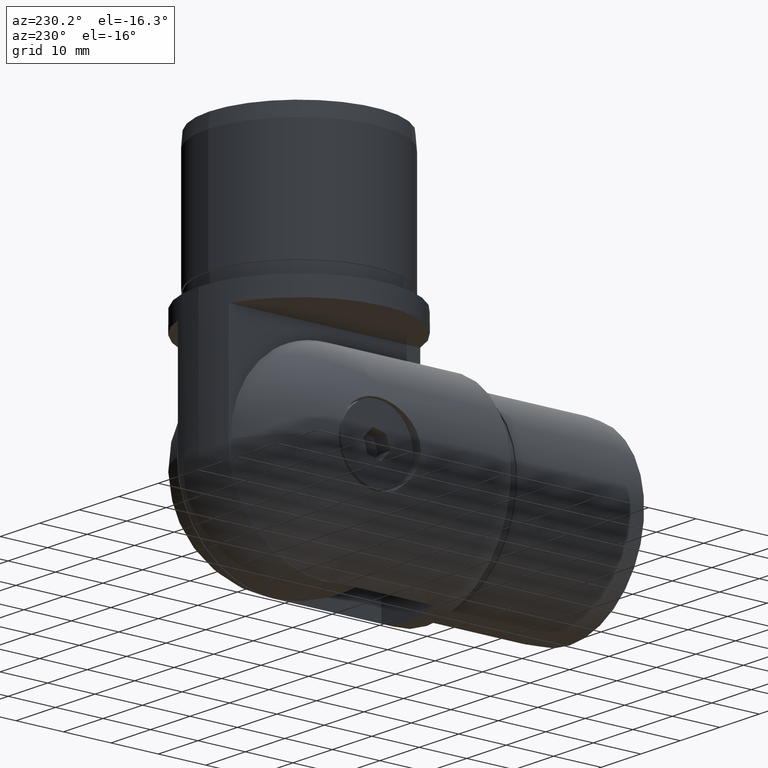
[diagram: clean part render]
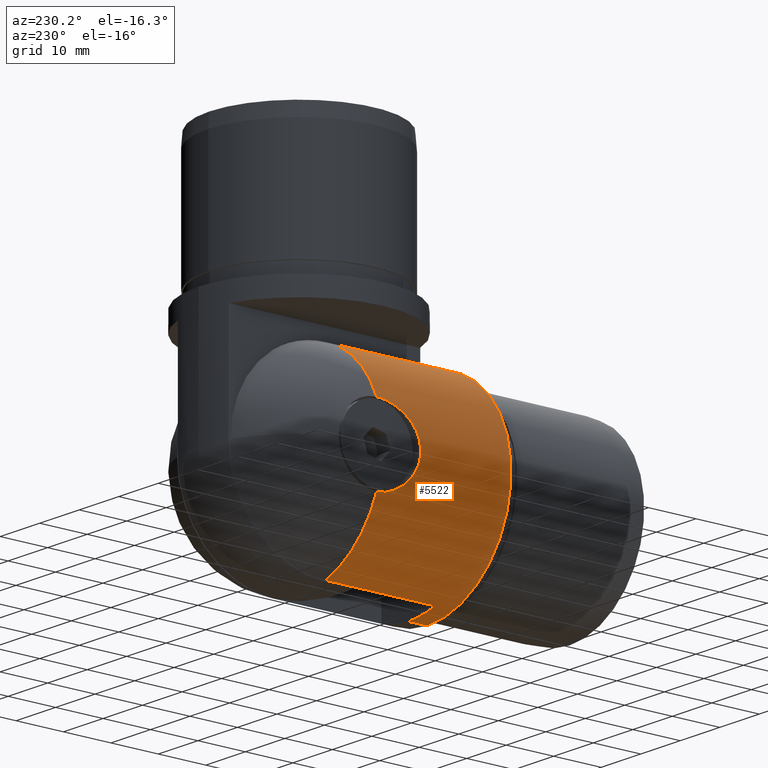
[diagram: same view with one face highlighted and labeled with its STEP entity id]
A machine part, auxiliary view. The second image highlights one B-rep face of the part: STEP entity #5522.
In plain terms, the highlighted cylindrical surface (partial cylindrical patch) has radius 21.2 mm, axis along (0, -1, 0).
Its self-contained STEP definition (entity closure, byte-faithful):
#56 = AXIS2_PLACEMENT_3D ( 'NONE', #4323, #1500, #5263 ) ;
#112 = CARTESIAN_POINT ( 'NONE',  ( -20.42943801203350418, 51.35004870449107983, -5.663752222727372221 ) ) ;
#133 = CARTESIAN_POINT ( 'NONE',  ( -20.27832713775442741, 51.92352948092918297, -6.182997036270589497 ) ) ;
#142 = CIRCLE ( 'NONE', #56, 21.19999999999999929 ) ;
#151 = CARTESIAN_POINT ( 'NONE',  ( -19.94426107809078630, 53.48161638186537914, -7.189487578162192527 ) ) ;
#158 = ORIENTED_EDGE ( 'NONE', *, *, #4256, .F. ) ;
#165 = CARTESIAN_POINT ( 'NONE',  ( -21.18043258207395141, 49.05186659441148578, 0.9190561370631638027 ) ) ;
#166 = CARTESIAN_POINT ( 'NONE',  ( -20.42699664024340578, 51.35888471539018951, -5.672552972675858562 ) ) ;
#167 = EDGE_CURVE ( 'NONE', #548, #4448, #2266, .T. ) ;
#175 = CARTESIAN_POINT ( 'NONE',  ( -19.75518921590801469, 54.80005714119689486, 7.692680850224066447 ) ) ;
#194 = CARTESIAN_POINT ( 'NONE',  ( -21.04327928036391171, 49.42480703260135044, 2.575724181210024444 ) ) ;
#195 = CARTESIAN_POINT ( 'NONE',  ( -20.27921649087816292, 51.91997794438821501, -6.180079384281714994 ) ) ;
#203 = CARTESIAN_POINT ( 'NONE',  ( -19.87708576752319090, 53.89217964041871767, 7.371669122750149405 ) ) ;
#223 = CARTESIAN_POINT ( 'NONE',  ( -21.11656859962976185, 49.22370136450860656, -1.879718540524055070 ) ) ;
#230 = CARTESIAN_POINT ( 'NONE',  ( -19.87499013766385048, 53.90560682917376312, 7.377315497325561466 ) ) ;
#241 = CARTESIAN_POINT ( 'NONE',  ( -20.72612665149017275, 50.35678298638896422, -4.457317195198680970 ) ) ;
#253 = EDGE_CURVE ( 'NONE', #5754, #4254, #1907, .T. ) ;
#256 = CARTESIAN_POINT ( 'NONE',  ( -20.97433270352526691, 49.61876416540633983, -3.085033347272747140 ) ) ;
#284 = CARTESIAN_POINT ( 'NONE',  ( -21.04497029130640229, 49.41986123617613913, -2.571152336572488650 ) ) ;
#304 = CARTESIAN_POINT ( 'NONE',  ( -21.00647034227681331, 49.52782800241204342, 2.859133408922674313 ) ) ;
#306 = DIRECTION ( 'NONE',  ( 0.0000000000000000000, 0.0000000000000000000, 1.000000000000000000 ) ) ;
#341 = CARTESIAN_POINT ( 'NONE',  ( -20.78747259182316753, 50.16756134562035641, 4.162020959967368761 ) ) ;
#352 = CARTESIAN_POINT ( 'NONE',  ( -6.750000000000000000, 34.00000000000000000, -20.09670370981269727 ) ) ;
#381 = CARTESIAN_POINT ( 'NONE',  ( -20.27964611961635910, 51.91823537254999366, 6.178646221066961708 ) ) ;
#438 = CIRCLE ( 'NONE', #3122, 21.19999999999999929 ) ;
#535 = EDGE_CURVE ( 'NONE', #813, #2013, #611, .T. ) ;
#548 = VERTEX_POINT ( 'NONE', #991 ) ;
#609 = CARTESIAN_POINT ( 'NONE',  ( -20.49650989227231790, 51.10787289255098642, -5.421416274017472503 ) ) ;
#611 = CIRCLE ( 'NONE', #5752, 21.19999999999999929 ) ;
#624 = CARTESIAN_POINT ( 'NONE',  ( -20.10879365779183559, 52.64975065989855096, -6.713982561713224051 ) ) ;
#640 = ORIENTED_EDGE ( 'NONE', *, *, #4936, .F. ) ;
#645 = CARTESIAN_POINT ( 'NONE',  ( -19.85595097466217851, 54.03010180171355614, -7.428443391244021754 ) ) ;
#666 = CARTESIAN_POINT ( 'NONE',  ( -19.80011137199416282, 54.42754681237364878, -7.576324534039440728 ) ) ;
#675 = CARTESIAN_POINT ( 'NONE',  ( -19.87413587837362883, 53.91109445923938637, 7.379616254529441477 ) ) ;
#685 = CARTESIAN_POINT ( 'NONE',  ( -21.17126035492110248, 49.07634650985561109, 1.116567021937764359 ) ) ;
#686 = CARTESIAN_POINT ( 'NONE',  ( -20.36176778773316443, 51.59982031309284878, -5.902958684759558317 ) ) ;
#689 = CARTESIAN_POINT ( 'NONE',  ( -19.83365578926647643, 54.17219457639608038, 7.488576929932234449 ) ) ;
#696 = CARTESIAN_POINT ( 'NONE',  ( -21.19999999999999929, 49.00000000000000000, 9.797174387786939677E-16 ) ) ;
#698 = CARTESIAN_POINT ( 'NONE',  ( -21.13233395636593315, 49.18106070617613312, -1.692689408480103408 ) ) ;
#723 = CARTESIAN_POINT ( 'NONE',  ( -21.19999999999999218, 49.00000000000000711, -0.5200570657044928380 ) ) ;
#724 = DIRECTION ( 'NONE',  ( 0.0000000000000000000, 1.000000000000000000, 0.0000000000000000000 ) ) ;
#744 = CARTESIAN_POINT ( 'NONE',  ( -20.93297341017221669, 49.73694750289111965, -3.354391944591644581 ) ) ;
#784 = ORIENTED_EDGE ( 'NONE', *, *, #253, .T. ) ;
#813 = VERTEX_POINT ( 'NONE', #3904 ) ;
#851 = CARTESIAN_POINT ( 'NONE',  ( -20.22485777910799953, 52.14051991147108822, 6.356270507105501899 ) ) ;
#882 = CARTESIAN_POINT ( 'NONE',  ( -20.43871630017529739, 51.31657931459329802, 5.630171834145868637 ) ) ;
#885 = CARTESIAN_POINT ( 'NONE',  ( 0.0000000000000000000, 57.00000000000000000, 0.0000000000000000000 ) ) ;
#910 = DIRECTION ( 'NONE',  ( 0.0000000000000000000, -1.000000000000000000, 0.0000000000000000000 ) ) ;
#991 = CARTESIAN_POINT ( 'NONE',  ( 0.0000000000000000000, 34.00000000000000000, -21.19999999999999929 ) ) ;
#1008 = ORIENTED_EDGE ( 'NONE', *, *, #4958, .F. ) ;
#1079 = CARTESIAN_POINT ( 'NONE',  ( -20.55342183840868131, 50.91386623208524043, -5.198697035192510363 ) ) ;
#1096 = CARTESIAN_POINT ( 'NONE',  ( -19.73971506616582872, 54.93220713572266334, -7.732630606387083994 ) ) ;
#1097 = VECTOR ( 'NONE', #910, 1000.000000000000000 ) ;
#1118 = CARTESIAN_POINT ( 'NONE',  ( -20.08637445242769459, 52.75418410298583893, -6.780985536865790309 ) ) ;
#1125 = EDGE_CURVE ( 'NONE', #3259, #548, #438, .T. ) ;
#1132 = CARTESIAN_POINT ( 'NONE',  ( -19.86439892970199850, 53.97432388796019609, -7.405795268101684314 ) ) ;
#1146 = VERTEX_POINT ( 'NONE', #2316 ) ;
#1154 = CARTESIAN_POINT ( 'NONE',  ( -19.70138225963497902, 55.35542847507816333, 7.829152401942856443 ) ) ;
#1190 = CARTESIAN_POINT ( 'NONE',  ( -20.68106312350715825, 50.49826420351047318, -4.661607578919294781 ) ) ;
#1194 = CARTESIAN_POINT ( 'NONE',  ( -19.63262590689284792, 56.47663036424618355, 8.000000000000000000 ) ) ;
#1203 = CARTESIAN_POINT ( 'NONE',  ( -20.72639478928017454, 50.35594652395027992, -4.456071479509298605 ) ) ;
#1210 = CARTESIAN_POINT ( 'NONE',  ( -19.69885713004149608, 55.38594148214232149, 7.835499852234216078 ) ) ;
#1222 = LINE ( 'NONE', #4324, #5053 ) ;
#1245 = ORIENTED_EDGE ( 'NONE', *, *, #535, .F. ) ;
#1269 = CARTESIAN_POINT ( 'NONE',  ( 0.0000000000000000000, 57.00000000000000000, -21.19999999999999929 ) ) ;
#1274 = AXIS2_PLACEMENT_3D ( 'NONE', #5888, #724, #306 ) ;
#1303 = CARTESIAN_POINT ( 'NONE',  ( -20.13408931140155289, 52.53439747862623932, 6.637655922589065227 ) ) ;
#1336 = CARTESIAN_POINT ( 'NONE',  ( -20.65109670976829648, 50.59184907324006275, 4.796170923298686439 ) ) ;
#1351 = CARTESIAN_POINT ( 'NONE',  ( -20.28458933438281875, 51.89855346674017511, 6.162415356151975665 ) ) ;
#1353 = DIRECTION ( 'NONE',  ( 0.0000000000000000000, -1.000000000000000000, 0.0000000000000000000 ) ) ;
#1500 = DIRECTION ( 'NONE',  ( 0.0000000000000000000, -1.000000000000000000, 0.0000000000000000000 ) ) ;
#1562 = CARTESIAN_POINT ( 'NONE',  ( -19.67833483343341783, 55.65694321143271139, -7.886950637508348017 ) ) ;
#1576 = CARTESIAN_POINT ( 'NONE',  ( -19.86806334160216281, 53.95041327708981527, -7.395951272204843718 ) ) ;
#1589 = CARTESIAN_POINT ( 'NONE',  ( -20.42335539373019060, 51.37207918639393256, -5.685663920050162190 ) ) ;
#1609 = CARTESIAN_POINT ( 'NONE',  ( -21.15069927905351221, 49.13156322358520356, 1.445274619941857130 ) ) ;
#1610 = CARTESIAN_POINT ( 'NONE',  ( -20.12844413436164359, 52.55992026374394044, -6.654755666740881814 ) ) ;
#1631 = CARTESIAN_POINT ( 'NONE',  ( -19.83946442215804140, 54.14159271780674487, -7.472461641991936965 ) ) ;
#1650 = CARTESIAN_POINT ( 'NONE',  ( -19.88024391351441622, 53.87201149311339776, 7.363155686374825315 ) ) ;
#1661 = CARTESIAN_POINT ( 'NONE',  ( -20.71968228324849548, 50.37689644000742106, -4.487176768869884924 ) ) ;
#1681 = CARTESIAN_POINT ( 'NONE',  ( -21.01256594240234676, 49.51016532115225033, -2.824417276211084182 ) ) ;
#1712 = CARTESIAN_POINT ( 'NONE',  ( 0.0000000000000000000, 57.00000000000000000, 0.0000000000000000000 ) ) ;
#1728 = DIRECTION ( 'NONE',  ( 0.0000000000000000000, -1.000000000000000000, 0.0000000000000000000 ) ) ;
#1738 = CARTESIAN_POINT ( 'NONE',  ( -20.97714858698950735, 49.61076508964967502, 3.065848692832879863 ) ) ;
#1755 = CARTESIAN_POINT ( 'NONE',  ( -20.03086506923057897, 53.01993694768722065, 6.944581507236883944 ) ) ;
#1762 = CARTESIAN_POINT ( 'NONE',  ( -20.94292160588946672, 49.70799852556114473, 3.298974238172797335 ) ) ;
#1797 = CARTESIAN_POINT ( 'NONE',  ( -20.27973301999457334, 51.91788829322954513, 6.178361090010257684 ) ) ;
#1853 = CARTESIAN_POINT ( 'NONE',  ( -20.35920519176447030, 51.60903997513320718, 5.912210969873107125 ) ) ;
#1907 = CIRCLE ( 'NONE', #2072, 21.19999999999999929 ) ;
#1946 = CARTESIAN_POINT ( 'NONE',  ( -20.28184572330068747, 51.90946725902079351, 6.171426318112202658 ) ) ;
#2012 = CARTESIAN_POINT ( 'NONE',  ( -19.87051602947787288, 53.93447171351239433, -7.389357937339546822 ) ) ;
#2013 = VERTEX_POINT ( 'NONE', #5673 ) ;
#2031 = CARTESIAN_POINT ( 'NONE',  ( -20.41500483006948841, 51.40244557517297608, -5.715628304547704985 ) ) ;
#2049 = CARTESIAN_POINT ( 'NONE',  ( -20.23185954214974558, 52.11200300459071144, -6.333719538382802661 ) ) ;
#2065 = CARTESIAN_POINT ( 'NONE',  ( -20.03176804758042096, 53.02001675608626385, -6.941079899010088816 ) ) ;
#2072 = AXIS2_PLACEMENT_3D ( 'NONE', #4686, #3247, #5158 ) ;
#2083 = CARTESIAN_POINT ( 'NONE',  ( -21.19510814551848199, 49.01281523590319011, 0.5242468966072940662 ) ) ;
#2084 = CARTESIAN_POINT ( 'NONE',  ( -19.78407662107873932, 54.55418154744508286, -7.618090833879539225 ) ) ;
#2105 = CARTESIAN_POINT ( 'NONE',  ( -21.13947451883896278, 49.16179722532028507, -1.601151041588585677 ) ) ;
#2115 = CARTESIAN_POINT ( 'NONE',  ( -19.70522757211892184, 55.30961270493701676, 7.819482085479527278 ) ) ;
#2132 = CARTESIAN_POINT ( 'NONE',  ( -20.72346013478272653, 50.36510228448643289, -4.469697416778837251 ) ) ;
#2148 = CARTESIAN_POINT ( 'NONE',  ( -21.19999999999999929, 49.00000000000000000, 9.797174387786939677E-16 ) ) ;
#2156 = CARTESIAN_POINT ( 'NONE',  ( -19.63262590689285148, 57.00000000000000000, 8.000000000000000000 ) ) ;
#2214 = CARTESIAN_POINT ( 'NONE',  ( -20.72957945531945612, 50.34601785381276784, 4.441231949265439738 ) ) ;
#2233 = CARTESIAN_POINT ( 'NONE',  ( -20.76976219639769283, 50.22162684108962338, 4.249958077970936721 ) ) ;
#2266 = LINE ( 'NONE', #1269, #1097 ) ;
#2316 = CARTESIAN_POINT ( 'NONE',  ( -6.750000000000000000, 57.00000000000000000, -20.09670370981269727 ) ) ;
#2450 = CARTESIAN_POINT ( 'NONE',  ( -20.31050144056629136, 51.79658006874663556, 6.076727043437453624 ) ) ;
#2491 = CARTESIAN_POINT ( 'NONE',  ( -19.87194764770444522, 53.92520791490958487, -7.385506483704806335 ) ) ;
#2531 = CARTESIAN_POINT ( 'NONE',  ( -19.71513096000168375, 55.18169765304148200, -7.794638759952965401 ) ) ;
#2549 = CARTESIAN_POINT ( 'NONE',  ( -6.750000000000000000, 57.00000000000000000, -20.09670370981269727 ) ) ;
#2556 = CARTESIAN_POINT ( 'NONE',  ( -21.14611316547708952, 49.14390802084160725, 1.510938399302927060 ) ) ;
#2557 = CARTESIAN_POINT ( 'NONE',  ( -19.68546149402307321, 55.55838979689511348, -7.869109009203595129 ) ) ;
#2566 = CARTESIAN_POINT ( 'NONE',  ( -19.79931911352426965, 54.42482940284958204, 7.578710007460587761 ) ) ;
#2581 = CARTESIAN_POINT ( 'NONE',  ( -20.15268985786221734, 52.45033844883252527, -6.581302854473957353 ) ) ;
#2586 = ORIENTED_EDGE ( 'NONE', *, *, #4242, .T. ) ;
#2596 = CARTESIAN_POINT ( 'NONE',  ( -21.13722420754543307, 49.16786475480270724, -1.630541816397895305 ) ) ;
#2611 = CARTESIAN_POINT ( 'NONE',  ( -20.94633334496279176, 49.69857397027480772, -3.270417589516533940 ) ) ;
#2630 = CARTESIAN_POINT ( 'NONE',  ( -21.08657135419736406, 49.30536643526733087, -2.193158979340385173 ) ) ;
#2660 = EDGE_LOOP ( 'NONE', ( #6073, #784, #2586, #1245, #1008, #158, #2941, #5655, #4536, #3625, #640 ) ) ;
#2672 = CARTESIAN_POINT ( 'NONE',  ( -20.82202718506658456, 50.06277968233003861, 3.986667783046635716 ) ) ;
#2693 = CARTESIAN_POINT ( 'NONE',  ( -20.72799982577893374, 50.35094110632759623, 4.448599269144191126 ) ) ;
#2743 = CARTESIAN_POINT ( 'NONE',  ( -20.72694465803837360, 50.35423161643795709, 4.453512246706310407 ) ) ;
#2784 = CARTESIAN_POINT ( 'NONE',  ( -20.44472366557906895, 51.29497344010623294, 5.608333299963194740 ) ) ;
#2828 = CARTESIAN_POINT ( 'NONE',  ( -20.39143016970308508, 51.48738075612546794, 5.800962420418652066 ) ) ;
#2836 = CARTESIAN_POINT ( 'NONE',  ( 2.596251214192389953E-15, 34.00000000000000000, 21.19999999999999929 ) ) ;
#2941 = ORIENTED_EDGE ( 'NONE', *, *, #3582, .F. ) ;
#2982 = CARTESIAN_POINT ( 'NONE',  ( -20.26773409381593183, 51.96598424320208665, -6.217657390761707425 ) ) ;
#2988 = CARTESIAN_POINT ( 'NONE',  ( -20.29683017689835722, 51.85017233095955902, 6.122076658662293447 ) ) ;
#2994 = CARTESIAN_POINT ( 'NONE',  ( -19.65359631046702305, 56.08422839082432887, -7.948507424336309413 ) ) ;
#3013 = CARTESIAN_POINT ( 'NONE',  ( -21.19999999999999929, 49.00000000000000000, 9.797174387786939677E-16 ) ) ;
#3014 = CARTESIAN_POINT ( 'NONE',  ( -20.00895500355421674, 53.13667986929812770, -7.006546674214078507 ) ) ;
#3024 = CARTESIAN_POINT ( 'NONE',  ( -20.29065063692603132, 51.87452082480851345, 6.142480337551325498 ) ) ;
#3035 = CARTESIAN_POINT ( 'NONE',  ( -21.12288147911754166, 49.20652681284978058, 1.823521904618098155 ) ) ;
#3037 = CARTESIAN_POINT ( 'NONE',  ( -20.27699449742928905, 51.92885393630560031, -6.187367328573748715 ) ) ;
#3056 = CARTESIAN_POINT ( 'NONE',  ( -20.62724313090261319, 50.67054541534397316, -4.894371607974268734 ) ) ;
#3084 = DIRECTION ( 'NONE',  ( 0.0000000000000000000, 0.0000000000000000000, -1.000000000000000000 ) ) ;
#3096 = CARTESIAN_POINT ( 'NONE',  ( -20.97144732047233973, 49.62696542474466810, -3.104579940206703359 ) ) ;
#3102 = VERTEX_POINT ( 'NONE', #696 ) ;
#3116 = CARTESIAN_POINT ( 'NONE',  ( -20.72506230000772476, 50.36010331111086913, -4.462261851283964909 ) ) ;
#3122 = AXIS2_PLACEMENT_3D ( 'NONE', #3727, #1353, #4694 ) ;
#3171 = CARTESIAN_POINT ( 'NONE',  ( -20.18814042251626972, 52.29649729714488871, 6.471571887633757569 ) ) ;
#3172 = LINE ( 'NONE', #4161, #4724 ) ;
#3210 = CARTESIAN_POINT ( 'NONE',  ( -20.17046664644305665, 52.37276370063811015, 6.526488690454561592 ) ) ;
#3247 = DIRECTION ( 'NONE',  ( 0.0000000000000000000, -1.000000000000000000, 0.0000000000000000000 ) ) ;
#3259 = VERTEX_POINT ( 'NONE', #352 ) ;
#3370 = DIRECTION ( 'NONE',  ( 0.0000000000000000000, -1.000000000000000000, 0.0000000000000000000 ) ) ;
#3376 = LINE ( 'NONE', #2549, #3897 ) ;
#3439 = CARTESIAN_POINT ( 'NONE',  ( -20.43089066847560176, 51.34479834188826430, -5.658508707864281284 ) ) ;
#3477 = CARTESIAN_POINT ( 'NONE',  ( -20.17551761675311539, 52.35014520600292087, -6.511214108109425247 ) ) ;
#3497 = CARTESIAN_POINT ( 'NONE',  ( -19.69037643236077528, 55.49270425760339975, -7.856791719358378501 ) ) ;
#3508 = DIRECTION ( 'NONE',  ( 0.0000000000000000000, -1.000000000000000000, 0.0000000000000000000 ) ) ;
#3514 = CARTESIAN_POINT ( 'NONE',  ( -20.30939424718410535, 51.80025343018684936, -6.081070548171217283 ) ) ;
#3523 = CARTESIAN_POINT ( 'NONE',  ( -19.74170843603544867, 54.92451785507056172, 7.727135789446757386 ) ) ;
#3541 = CARTESIAN_POINT ( 'NONE',  ( -21.18063184602845794, 49.05087971849160766, -1.046412855543243481 ) ) ;
#3554 = VERTEX_POINT ( 'NONE', #4520 ) ;
#3562 = CARTESIAN_POINT ( 'NONE',  ( -21.19999999999999929, 49.00000000000000000, 0.2613295650336766029 ) ) ;
#3563 = CARTESIAN_POINT ( 'NONE',  ( -20.97347605095101386, 49.62119850311746205, -3.090848414699182811 ) ) ;
#3582 = EDGE_CURVE ( 'NONE', #1146, #3554, #4918, .T. ) ;
#3622 = CARTESIAN_POINT ( 'NONE',  ( -20.98428744386892220, 49.59051785195298834, 3.016598033867031958 ) ) ;
#3625 = ORIENTED_EDGE ( 'NONE', *, *, #167, .T. ) ;
#3639 = VERTEX_POINT ( 'NONE', #5850 ) ;
#3643 = CARTESIAN_POINT ( 'NONE',  ( -20.73194551604583680, 50.33864685317130494, 4.430181864933443237 ) ) ;
#3702 = CARTESIAN_POINT ( 'NONE',  ( -20.57715587181289152, 50.83565874189648071, 5.100765659197678659 ) ) ;
#3727 = CARTESIAN_POINT ( 'NONE',  ( 0.0000000000000000000, 34.00000000000000000, 0.0000000000000000000 ) ) ;
#3729 = CARTESIAN_POINT ( 'NONE',  ( -20.50778261316511220, 51.07228265212023643, 5.372860186098858293 ) ) ;
#3812 = EDGE_CURVE ( 'NONE', #1146, #3259, #3376, .T. ) ;
#3897 = VECTOR ( 'NONE', #3508, 1000.000000000000000 ) ;
#3904 = CARTESIAN_POINT ( 'NONE',  ( -19.63262590689285148, 57.00000000000000000, 8.000000000000000000 ) ) ;
#3906 = CARTESIAN_POINT ( 'NONE',  ( -19.90612540326876712, 53.70478659115551068, -7.293504868553080556 ) ) ;
#3930 = CARTESIAN_POINT ( 'NONE',  ( -20.34734248759240671, 51.65462311509210025, -5.952406388077188026 ) ) ;
#3941 = CARTESIAN_POINT ( 'NONE',  ( -20.27389472886053667, 51.94125763534923834, -6.197521451832011863 ) ) ;
#3960 = CARTESIAN_POINT ( 'NONE',  ( -19.63262590689285148, 56.74005741043610840, -8.000000000000000000 ) ) ;
#3987 = CARTESIAN_POINT ( 'NONE',  ( -20.38606956795131353, 51.50901470904845070, -5.818143690711812255 ) ) ;
#4010 = CARTESIAN_POINT ( 'NONE',  ( -20.71196871614292334, 50.40100815717721616, -4.522651267263516850 ) ) ;
#4016 = CARTESIAN_POINT ( 'NONE',  ( -19.72333104522585501, 55.10997342432735735, 7.773793343913167675 ) ) ;
#4023 = CARTESIAN_POINT ( 'NONE',  ( -20.69591012578357336, 50.45135656069011532, -4.595638785028411277 ) ) ;
#4034 = CARTESIAN_POINT ( 'NONE',  ( -19.71460329457088534, 55.20239283853769052, 7.795866087391892130 ) ) ;
#4046 = CARTESIAN_POINT ( 'NONE',  ( -20.64992579061549449, 50.59738831170604811, -4.797830542827347777 ) ) ;
#4091 = CARTESIAN_POINT ( 'NONE',  ( -20.97973851964557568, 49.60341421759944325, 3.048082702904892027 ) ) ;
#4125 = CARTESIAN_POINT ( 'NONE',  ( -20.15104581991396060, 52.45847349249824276, 6.586048405962120711 ) ) ;
#4130 = CARTESIAN_POINT ( 'NONE',  ( -20.99105646994179608, 49.57134719292811553, 2.969366087221037009 ) ) ;
#4161 = CARTESIAN_POINT ( 'NONE',  ( 2.596251214192389953E-15, 57.00000000000000000, 21.19999999999999929 ) ) ;
#4169 = CARTESIAN_POINT ( 'NONE',  ( -20.28000389260553860, 51.91680813123777227, 6.177472078387464371 ) ) ;
#4190 = CARTESIAN_POINT ( 'NONE',  ( -20.43310491652798078, 51.33679869447207977, 5.650513937160723366 ) ) ;
#4193 = DIRECTION ( 'NONE',  ( 0.0000000000000000000, 1.000000000000000000, 0.0000000000000000000 ) ) ;
#4242 = EDGE_CURVE ( 'NONE', #4254, #2013, #1222, .T. ) ;
#4254 = VERTEX_POINT ( 'NONE', #5336 ) ;
#4256 = EDGE_CURVE ( 'NONE', #3554, #3102, #4317, .T. ) ;
#4275 = B_SPLINE_CURVE_WITH_KNOTS ( 'NONE', 3,
 ( #3013, #3562, #2083, #165, #685, #5814, #1609, #2556, #5832, #3035, #5390, #5419, #194, #5473, #304, #4130, #3622, #4091, #1738, #1762, #5442, #5022, #2672, #341, #2233, #5042, #5980, #3643, #2214, #2693, #2743, #5583, #1336, #3702, #5558, #3729, #5109, #6022, #5172, #2784, #882, #4680, #4190, #2828, #1853, #6043, #2450, #2988, #3024, #1351, #1946, #4306, #4169, #381, #1797, #5957, #851, #3171, #3210, #4125, #5994, #4604, #5520, #1303, #5106, #1755, #5975, #5057, #4446, #5838, #4505, #1650, #203, #230, #675, #689, #2566, #175, #3523, #4016, #4034, #2115, #1154, #1210, #5396, #4460, #1194, #2156 ),
 .UNSPECIFIED., .F., .F.,
 ( 4, 2, 1, 1, 2, 2, 2, 2, 1, 1, 2, 2, 2, 2, 1, 1, 1, 1, 2, 2, 2, 2, 2, 1, 1, 2, 2, 2, 2, 1, 1, 1, 1, 2, 2, 2, 1, 1, 1, 2, 2, 2, 2, 1, 1, 1, 2, 2, 2, 2, 1, 1, 2, 2, 4 ),
 ( 0.0000000000000000000, 0.06250000000011493584, 0.09375000000017248702, 0.1093750000002010891, 0.1171875000002152584, 0.1250000000002293998, 0.1875000000003421152, 0.2187500000003986811, 0.2343750000004272971, 0.2421875000004418688, 0.2460937500004491685, 0.2500000000004564682, 0.3125000000005749290, 0.3437500000006337153, 0.3593750000006631362, 0.3671875000006775691, 0.3710937500006846745, 0.3730468750006881717, 0.3740234375006898926, 0.3750000000006915579, 0.4375000000007904233, 0.4687500000008393841, 0.4843750000008638090, 0.4921875000008764656, 0.4960937500008833489, 0.4980468750008867351, 0.5000000000008901768, 0.5312500000009452439, 0.5468750000009726664, 0.5546875000009875434, 0.5585937500009949819, 0.5605468750009987566, 0.5615234375010005330, 0.5620117187510001999, 0.5625000000009998669, 0.5937500000009512391, 0.6093750000009269252, 0.6171875000009139356, 0.6210937500009067191, 0.6230468750009030554, 0.6250000000008993917, 0.6875000000007651657, 0.7187500000006972201, 0.7343750000006632472, 0.7421875000006462608, 0.7460937500006377121, 0.7480468750006343814, 0.7500000000006309397, 0.8125000000004802825, 0.8437500000004042322, 0.8593750000003661516, 0.8671875000003469447, 0.8710937500003373968, 0.8750000000003277378, 1.000000000000000000 ),
 .UNSPECIFIED. ) ;
#4306 = CARTESIAN_POINT ( 'NONE',  ( -20.28054567780696971, 51.91464745105680834, 6.175693938574226216 ) ) ;
#4317 = B_SPLINE_CURVE_WITH_KNOTS ( 'NONE', 3,
 ( #4886, #3960, #5771, #2994, #5833, #1562, #2557, #3497, #5816, #2531, #1096, #2084, #666, #4393, #1631, #645, #1132, #1576, #2012, #2491, #3906, #151, #3014, #2065, #4441, #1118, #624, #4412, #5349, #1610, #4453, #2581, #3477, #4902, #2049, #5374, #2982, #3941, #3037, #133, #195, #5848, #4920, #3514, #3930, #686, #3987, #4872, #2031, #1589, #166, #112, #3439, #609, #1079, #3056, #4046, #1190, #4023, #4010, #1661, #2132, #3116, #241, #1203, #4497, #4518, #4961, #5420, #744, #2611, #5887, #4947, #3096, #3563, #256, #1681, #284, #2630, #5902, #223, #4978, #698, #2596, #2105, #3541, #723, #2148 ),
 .UNSPECIFIED., .F., .F.,
 ( 4, 2, 1, 1, 2, 2, 2, 2, 1, 1, 1, 2, 2, 2, 2, 1, 1, 1, 2, 2, 2, 1, 1, 1, 1, 1, 2, 2, 2, 2, 1, 1, 1, 2, 2, 2, 2, 1, 1, 1, 1, 2, 2, 2, 2, 1, 1, 1, 2, 2, 2, 2, 1, 2, 2, 4 ),
 ( 0.0000000000000000000, 0.06249999999994905464, 0.09374999999992440769, 0.1093749999999128752, 0.1171874999999070605, 0.1249999999999012457, 0.1874999999998636369, 0.2187499999998448741, 0.2343749999998347155, 0.2421874999998303024, 0.2460937499998287759, 0.2480468749998279432, 0.2499999999998271383, 0.3124999999998311351, 0.3437499999998331335, 0.3593749999998340772, 0.3671874999998351319, 0.3710937499998357980, 0.3730468749998361866, 0.3749999999998365752, 0.4062499999998405720, 0.4218749999998425149, 0.4296874999998427369, 0.4335937499998435141, 0.4355468749998444578, 0.4365234374998449574, 0.4370117187498446798, 0.4374999999998444022, 0.4687499999998603895, 0.4843749999998689382, 0.4921874999998738787, 0.4960937499998762656, 0.4980468749998770983, 0.4990234374998769873, 0.4999999999998768763, 0.5624999999999157341, 0.5937499999999348299, 0.6093749999999437117, 0.6171874999999483746, 0.6210937499999512612, 0.6230468749999525935, 0.6240234374999525935, 0.6249999999999527045, 0.6874999999999528155, 0.7187499999999529265, 0.7343749999999528155, 0.7421874999999532596, 0.7460937499999533706, 0.7480468749999539257, 0.7499999999999543698, 0.8124999999999656941, 0.8437499999999713562, 0.8593749999999741318, 0.8671874999999755751, 0.8749999999999770184, 1.000000000000000000 ),
 .UNSPECIFIED. ) ;
#4323 = CARTESIAN_POINT ( 'NONE',  ( 0.0000000000000000000, 30.00000000000000000, 0.0000000000000000000 ) ) ;
#4324 = CARTESIAN_POINT ( 'NONE',  ( -6.750000000000000000, 57.00000000000000000, 20.09670370981269727 ) ) ;
#4393 = CARTESIAN_POINT ( 'NONE',  ( -19.82603484728395671, 54.23700815583950430, -7.508024259484443519 ) ) ;
#4412 = CARTESIAN_POINT ( 'NONE',  ( -20.12020807646066700, 52.59738277857235289, -6.679635163419257005 ) ) ;
#4441 = CARTESIAN_POINT ( 'NONE',  ( -20.06786021692732902, 52.84311238283331136, -6.835568706026966979 ) ) ;
#4446 = CARTESIAN_POINT ( 'NONE',  ( -19.91693877931554724, 53.64663493543135075, 7.263521363283607535 ) ) ;
#4448 = VERTEX_POINT ( 'NONE', #5600 ) ;
#4453 = CARTESIAN_POINT ( 'NONE',  ( -20.13045086294935615, 52.55083323069744949, -6.648681501861962495 ) ) ;
#4460 = CARTESIAN_POINT ( 'NONE',  ( -19.65388047744248468, 55.94511235178692488, 7.948467785736922586 ) ) ;
#4497 = CARTESIAN_POINT ( 'NONE',  ( -20.77778220920332330, 50.19569560122594254, -4.216849284158882938 ) ) ;
#4505 = CARTESIAN_POINT ( 'NONE',  ( -19.88771582924297832, 53.82476240588392358, 7.342981867357157633 ) ) ;
#4518 = CARTESIAN_POINT ( 'NONE',  ( -20.82377279144851556, 50.05684286608390465, -3.982518163046706139 ) ) ;
#4520 = CARTESIAN_POINT ( 'NONE',  ( -19.63262590689285148, 57.00000000000000000, -8.000000000000000000 ) ) ;
#4536 = ORIENTED_EDGE ( 'NONE', *, *, #1125, .T. ) ;
#4604 = CARTESIAN_POINT ( 'NONE',  ( -20.13766607443713141, 52.51830256192974389, 6.626797045012486009 ) ) ;
#4680 = CARTESIAN_POINT ( 'NONE',  ( -20.43469624167623166, 51.33106011246750455, 5.644752086749373454 ) ) ;
#4686 = CARTESIAN_POINT ( 'NONE',  ( 0.0000000000000000000, 34.00000000000000000, 0.0000000000000000000 ) ) ;
#4694 = DIRECTION ( 'NONE',  ( 0.0000000000000000000, 0.0000000000000000000, -1.000000000000000000 ) ) ;
#4724 = VECTOR ( 'NONE', #3370, 1000.000000000000000 ) ;
#4780 = CYLINDRICAL_SURFACE ( 'NONE', #5894, 21.19999999999999929 ) ;
#4790 = DIRECTION ( 'NONE',  ( 0.0000000000000000000, 1.000000000000000000, 0.0000000000000000000 ) ) ;
#4809 = EDGE_CURVE ( 'NONE', #5754, #3639, #3172, .T. ) ;
#4872 = CARTESIAN_POINT ( 'NONE',  ( -20.39888641556213855, 51.46146510978175570, -5.773072765132411632 ) ) ;
#4886 = CARTESIAN_POINT ( 'NONE',  ( -19.63262590689285148, 57.00000000000000000, -8.000000000000000000 ) ) ;
#4902 = CARTESIAN_POINT ( 'NONE',  ( -20.21260466531352407, 52.19259167685819278, -6.394770512404030605 ) ) ;
#4918 = CIRCLE ( 'NONE', #1274, 21.19999999999999929 ) ;
#4920 = CARTESIAN_POINT ( 'NONE',  ( -20.29119896693056191, 51.87217479641152806, -6.140740403010235937 ) ) ;
#4936 = EDGE_CURVE ( 'NONE', #3639, #4448, #142, .T. ) ;
#4947 = CARTESIAN_POINT ( 'NONE',  ( -20.96839072984614916, 49.63565759240032094, -3.125196166701988520 ) ) ;
#4958 = EDGE_CURVE ( 'NONE', #3102, #813, #4275, .T. ) ;
#4961 = CARTESIAN_POINT ( 'NONE',  ( -20.88584927183607931, 49.87353157878116861, -3.637364199208356297 ) ) ;
#4978 = CARTESIAN_POINT ( 'NONE',  ( -21.12477965895714505, 49.20146088827254971, -1.786033143104813981 ) ) ;
#5022 = CARTESIAN_POINT ( 'NONE',  ( -20.84390865041880758, 49.99739173672464432, 3.870463075157674293 ) ) ;
#5042 = CARTESIAN_POINT ( 'NONE',  ( -20.74834214549471056, 50.28772725991569104, 4.352879195102695498 ) ) ;
#5053 = VECTOR ( 'NONE', #4790, 1000.000000000000000 ) ;
#5057 = CARTESIAN_POINT ( 'NONE',  ( -19.94561462616436032, 53.47933787870843503, 7.184715556811572590 ) ) ;
#5106 = CARTESIAN_POINT ( 'NONE',  ( -20.07913555242254233, 52.78256414182281731, 6.804206711843414190 ) ) ;
#5109 = CARTESIAN_POINT ( 'NONE',  ( -20.49303542339600881, 51.12363453155451509, 5.429038857356871084 ) ) ;
#5158 = DIRECTION ( 'NONE',  ( 0.0000000000000000000, 0.0000000000000000000, -1.000000000000000000 ) ) ;
#5172 = CARTESIAN_POINT ( 'NONE',  ( -20.45858179510782193, 51.24536215176559040, 5.557606652143427972 ) ) ;
#5263 = DIRECTION ( 'NONE',  ( 0.0000000000000000000, 0.0000000000000000000, -1.000000000000000000 ) ) ;
#5336 = CARTESIAN_POINT ( 'NONE',  ( -6.750000000000000000, 34.00000000000000000, 20.09670370981269727 ) ) ;
#5349 = CARTESIAN_POINT ( 'NONE',  ( -20.12514385931591931, 52.57490915715563062, -6.664731958669195322 ) ) ;
#5374 = CARTESIAN_POINT ( 'NONE',  ( -20.25556843209835733, 52.01510899316772907, -6.257244786867627973 ) ) ;
#5390 = CARTESIAN_POINT ( 'NONE',  ( -21.09982646964358466, 49.26887586232084715, 2.073296825874722860 ) ) ;
#5396 = CARTESIAN_POINT ( 'NONE',  ( -19.69771802920109849, 55.39988586432082940, 7.838362001226010456 ) ) ;
#5419 = CARTESIAN_POINT ( 'NONE',  ( -21.05828584187814556, 49.38322271185278822, 2.449880360928194278 ) ) ;
#5420 = CARTESIAN_POINT ( 'NONE',  ( -20.90538986646855690, 49.81658517531165842, -3.523359055113581384 ) ) ;
#5442 = CARTESIAN_POINT ( 'NONE',  ( -20.90608825604531518, 49.81374208777787516, 3.525014161564478776 ) ) ;
#5473 = CARTESIAN_POINT ( 'NONE',  ( -21.01902990970395280, 49.49258721762445390, 2.764639072785668006 ) ) ;
#5489 = FACE_OUTER_BOUND ( 'NONE', #2660, .T. ) ;
#5520 = CARTESIAN_POINT ( 'NONE',  ( -20.13503435861030866, 52.53014114893742459, 6.634788079039851461 ) ) ;
#5522 = ADVANCED_FACE ( 'NONE', ( #5489 ), #4780, .T. ) ;
#5558 = CARTESIAN_POINT ( 'NONE',  ( -20.55056995240651929, 50.92493965516531063, 5.207252629698401414 ) ) ;
#5583 = CARTESIAN_POINT ( 'NONE',  ( -20.69263470805362459, 50.46126248958705673, 4.613101866075942858 ) ) ;
#5600 = CARTESIAN_POINT ( 'NONE',  ( 0.0000000000000000000, 30.00000000000000000, -21.19999999999999929 ) ) ;
#5655 = ORIENTED_EDGE ( 'NONE', *, *, #3812, .T. ) ;
#5673 = CARTESIAN_POINT ( 'NONE',  ( -6.750000000000000000, 57.00000000000000000, 20.09670370981269727 ) ) ;
#5752 = AXIS2_PLACEMENT_3D ( 'NONE', #885, #4193, #6063 ) ;
#5754 = VERTEX_POINT ( 'NONE', #2836 ) ;
#5771 = CARTESIAN_POINT ( 'NONE',  ( -19.63786850778639348, 56.47813798079306480, -7.987320682964706542 ) ) ;
#5814 = CARTESIAN_POINT ( 'NONE',  ( -21.15734914373931730, 49.11367666718642511, 1.346735768437361314 ) ) ;
#5816 = CARTESIAN_POINT ( 'NONE',  ( -19.69308788731705562, 55.45771523525132096, -7.849989560011230161 ) ) ;
#5832 = CARTESIAN_POINT ( 'NONE',  ( -21.14359977960989667, 49.15067851894468731, 1.545685541809858732 ) ) ;
#5833 = CARTESIAN_POINT ( 'NONE',  ( -19.66342618714239876, 55.88701854223380394, -7.924155012798347997 ) ) ;
#5838 = CARTESIAN_POINT ( 'NONE',  ( -19.90307129436270728, 53.72951590677503475, 7.301381570839451385 ) ) ;
#5848 = CARTESIAN_POINT ( 'NONE',  ( -20.27993392502533965, 51.91711494939318072, -6.177724529637047546 ) ) ;
#5850 = CARTESIAN_POINT ( 'NONE',  ( 2.596251214192389953E-15, 30.00000000000000000, 21.19999999999999929 ) ) ;
#5887 = CARTESIAN_POINT ( 'NONE',  ( -20.96116422069458096, 49.65623339594090879, -3.173431930894546227 ) ) ;
#5888 = CARTESIAN_POINT ( 'NONE',  ( 0.0000000000000000000, 57.00000000000000000, 0.0000000000000000000 ) ) ;
#5894 = AXIS2_PLACEMENT_3D ( 'NONE', #1712, #1728, #3084 ) ;
#5902 = CARTESIAN_POINT ( 'NONE',  ( -21.09927079841683550, 49.27069218421696206, -2.067474238924654095 ) ) ;
#5957 = CARTESIAN_POINT ( 'NONE',  ( -20.25116242276288503, 52.03193057484735817, 6.272114157214344843 ) ) ;
#5975 = CARTESIAN_POINT ( 'NONE',  ( -19.96598635998778448, 53.36575629919418162, 7.128064342857300062 ) ) ;
#5980 = CARTESIAN_POINT ( 'NONE',  ( -20.73744263931656917, 50.32154482445690036, 4.404404873460466163 ) ) ;
#5994 = CARTESIAN_POINT ( 'NONE',  ( -20.14163505137181787, 52.50048278816452552, 6.614734102715837949 ) ) ;
#6022 = CARTESIAN_POINT ( 'NONE',  ( -20.47018752370937733, 51.20419714134416722, 5.514544653183426348 ) ) ;
#6043 = CARTESIAN_POINT ( 'NONE',  ( -20.32136519464257773, 51.75431642997731529, 6.040445018265955035 ) ) ;
#6063 = DIRECTION ( 'NONE',  ( 0.0000000000000000000, 0.0000000000000000000, 1.000000000000000000 ) ) ;
#6073 = ORIENTED_EDGE ( 'NONE', *, *, #4809, .F. ) ;